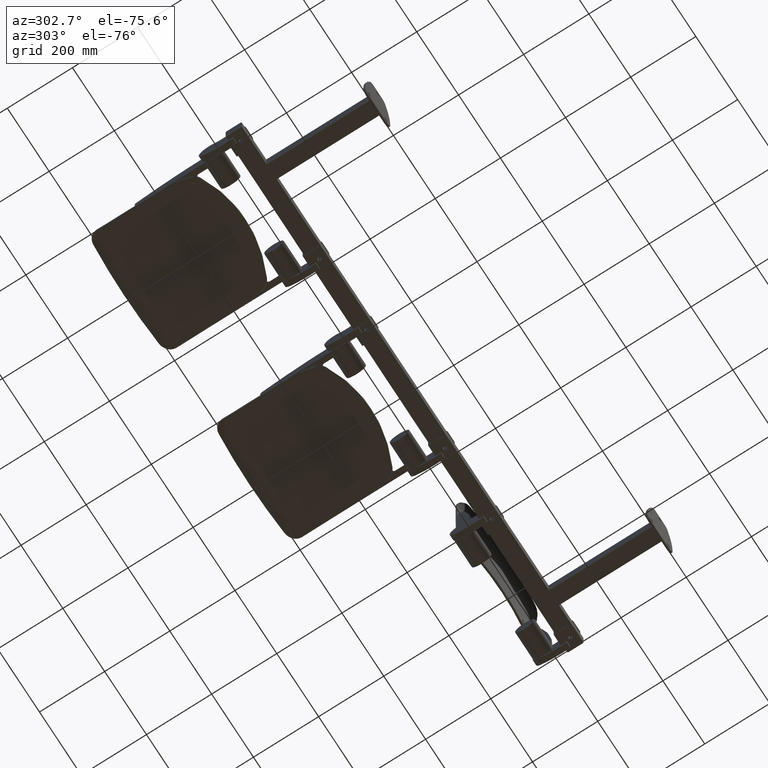
[diagram: clean part render]
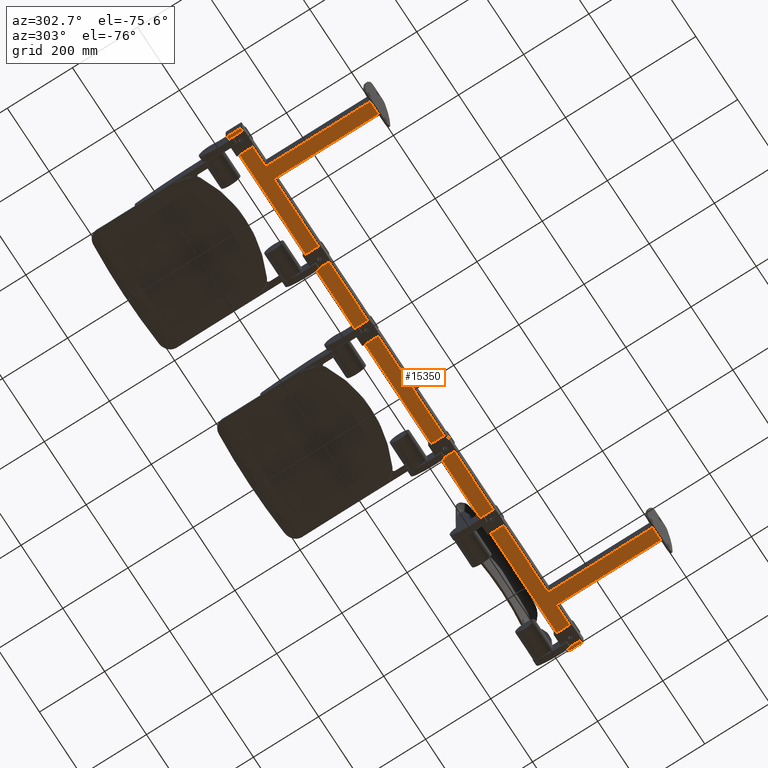
[diagram: same view with one face highlighted and labeled with its STEP entity id]
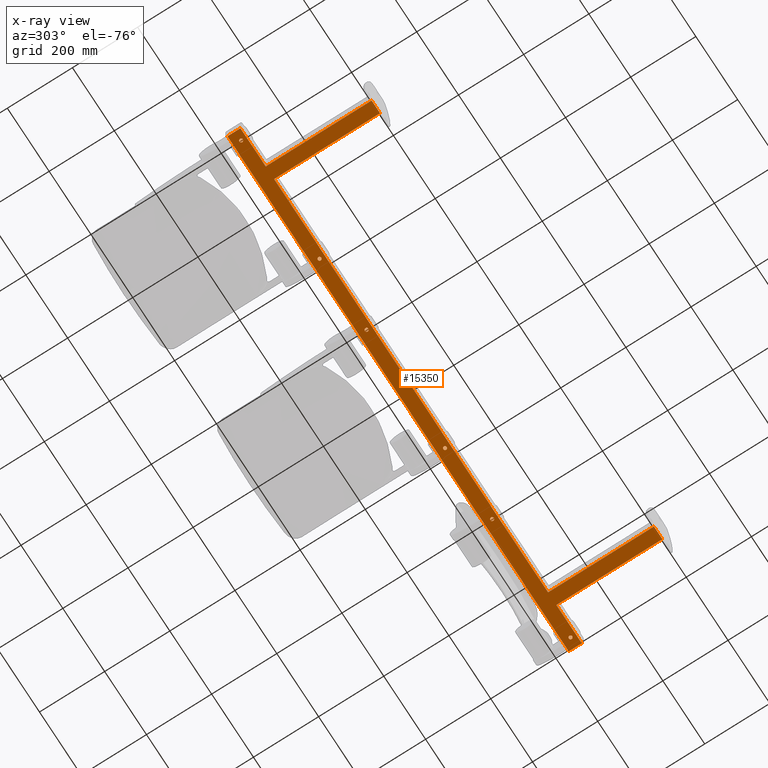
[diagram: x-ray of the same camera — body ghosted, the highlighted face saturated]
A machine part, auxiliary view. The second image highlights one B-rep face of the part: STEP entity #15350.
The next image is the same camera in x-ray: the body ghosted, the highlighted face saturated — about 0% of this face is hidden behind the body in this view.
In plain terms, the highlighted planar face has unit normal (0, 0, -1).
Its self-contained STEP definition (entity closure, byte-faithful):
#858 = AXIS2_PLACEMENT_3D ( 'NONE', #13570, #13568, #13574 ) ;
#945 = CARTESIAN_POINT ( 'NONE',  ( -187.5000000000000000, 347.0000000000000000, -25.00000000000000000 ) ) ;
#946 = DIRECTION ( 'NONE',  ( 0.0000000000000000000, 0.0000000000000000000, 1.000000000000000000 ) ) ;
#947 = DIRECTION ( 'NONE',  ( 1.000000000000000000, 0.0000000000000000000, 0.0000000000000000000 ) ) ;
#2024 = CARTESIAN_POINT ( 'NONE',  ( 695.0000000000001100, 6.000000000000000900, -25.00000000000000000 ) ) ;
#2028 = CARTESIAN_POINT ( 'NONE',  ( 695.0000000000002300, 331.0000000000000000, -25.00000000000000000 ) ) ;
#2032 = CARTESIAN_POINT ( 'NONE',  ( 816.0000000000000000, 331.0000000000000000, -25.00000000000000000 ) ) ;
#2046 = CARTESIAN_POINT ( 'NONE',  ( -816.0000000000000000, 331.0000000000000000, -25.00000000000000000 ) ) ;
#2048 = CARTESIAN_POINT ( 'NONE',  ( -654.9999999999998900, 331.0000000000000000, -25.00000000000000000 ) ) ;
#2050 = CARTESIAN_POINT ( 'NONE',  ( -695.0000000000002300, 331.0000000000000000, -25.00000000000000000 ) ) ;
#2056 = CARTESIAN_POINT ( 'NONE',  ( 816.0000000000000000, 371.0000000000000000, -25.00000000000000000 ) ) ;
#2058 = CARTESIAN_POINT ( 'NONE',  ( 654.9999999999998900, 331.0000000000000000, -25.00000000000000000 ) ) ;
#2869 = EDGE_LOOP ( 'NONE', ( #13723, #13724, #13721, #13722, #13713, #13714, #13717, #13718, #13715, #13716, #13707, #13708 ) ) ;
#2870 = EDGE_LOOP ( 'NONE', ( #13709, #13710 ) ) ;
#2871 = EDGE_LOOP ( 'NONE', ( #13711, #13712 ) ) ;
#2872 = EDGE_LOOP ( 'NONE', ( #13701, #13702 ) ) ;
#3342 = AXIS2_PLACEMENT_3D ( 'NONE', #16055, #16056, #16057 ) ;
#3347 = AXIS2_PLACEMENT_3D ( 'NONE', #16065, #16066, #16067 ) ;
#3351 = AXIS2_PLACEMENT_3D ( 'NONE', #16075, #16076, #16077 ) ;
#3356 = AXIS2_PLACEMENT_3D ( 'NONE', #16087, #16088, #16089 ) ;
#3400 = AXIS2_PLACEMENT_3D ( 'NONE', #9686, #9687, #9688 ) ;
#3403 = AXIS2_PLACEMENT_3D ( 'NONE', #9691, #9692, #9693 ) ;
#3405 = AXIS2_PLACEMENT_3D ( 'NONE', #9695, #9696, #9697 ) ;
#3407 = AXIS2_PLACEMENT_3D ( 'NONE', #9717, #9718, #9719 ) ;
#3410 = AXIS2_PLACEMENT_3D ( 'NONE', #9722, #9723, #9724 ) ;
#3412 = AXIS2_PLACEMENT_3D ( 'NONE', #9727, #9728, #9729 ) ;
#4136 = FACE_BOUND ( 'NONE', #16013, .T. ) ;
#4137 = FACE_BOUND ( 'NONE', #16015, .T. ) ;
#4138 = FACE_BOUND ( 'NONE', #2871, .T. ) ;
#4139 = FACE_OUTER_BOUND ( 'NONE', #2869, .T. ) ;
#4140 = FACE_BOUND ( 'NONE', #15381, .T. ) ;
#4141 = FACE_BOUND ( 'NONE', #2870, .T. ) ;
#4142 = FACE_BOUND ( 'NONE', #2872, .T. ) ;
#4345 = EDGE_CURVE ( 'NONE', #12924, #12923, #15771, .T. ) ;
#4386 = EDGE_CURVE ( 'NONE', #12965, #12922, #15389, .T. ) ;
#4473 = AXIS2_PLACEMENT_3D ( 'NONE', #945, #946, #947 ) ;
#4488 = AXIS2_PLACEMENT_3D ( 'NONE', #11894, #4581, #4582 ) ;
#4581 = DIRECTION ( 'NONE',  ( 0.0000000000000000000, 0.0000000000000000000, 1.000000000000000000 ) ) ;
#4582 = DIRECTION ( 'NONE',  ( 1.000000000000000000, 0.0000000000000000000, 0.0000000000000000000 ) ) ;
#4991 = CIRCLE ( 'NONE', #3342, 5.250000000000032000 ) ;
#4997 = CIRCLE ( 'NONE', #3347, 5.249999999999976900 ) ;
#5003 = CIRCLE ( 'NONE', #3351, 5.250000000000032000 ) ;
#5009 = CIRCLE ( 'NONE', #3356, 5.249999999999976900 ) ;
#5037 = LINE ( 'NONE', #9694, #5080 ) ;
#5042 = LINE ( 'NONE', #9635, #5044 ) ;
#5044 = VECTOR ( 'NONE', #9636, 1000.000000000000000 ) ;
#5073 = CIRCLE ( 'NONE', #3400, 5.250000000000004400 ) ;
#5074 = CIRCLE ( 'NONE', #3403, 5.249999999999976900 ) ;
#5075 = CIRCLE ( 'NONE', #3405, 5.249999999999976900 ) ;
#5076 = LINE ( 'NONE', #9689, #5078 ) ;
#5078 = VECTOR ( 'NONE', #9690, 1000.000000000000000 ) ;
#5079 = LINE ( 'NONE', #9699, #5082 ) ;
#5080 = VECTOR ( 'NONE', #9698, 1000.000000000000000 ) ;
#5081 = LINE ( 'NONE', #9701, #5084 ) ;
#5082 = VECTOR ( 'NONE', #9700, 1000.000000000000000 ) ;
#5083 = LINE ( 'NONE', #9703, #5086 ) ;
#5084 = VECTOR ( 'NONE', #9702, 1000.000000000000000 ) ;
#5085 = LINE ( 'NONE', #9705, #5088 ) ;
#5086 = VECTOR ( 'NONE', #9704, 1000.000000000000000 ) ;
#5087 = LINE ( 'NONE', #9707, #5090 ) ;
#5088 = VECTOR ( 'NONE', #9706, 1000.000000000000000 ) ;
#5089 = LINE ( 'NONE', #9709, #5092 ) ;
#5090 = VECTOR ( 'NONE', #9708, 1000.000000000000000 ) ;
#5091 = LINE ( 'NONE', #9711, #5094 ) ;
#5092 = VECTOR ( 'NONE', #9710, 1000.000000000000000 ) ;
#5093 = LINE ( 'NONE', #9713, #5096 ) ;
#5094 = VECTOR ( 'NONE', #9712, 1000.000000000000000 ) ;
#5095 = LINE ( 'NONE', #9715, #5098 ) ;
#5096 = VECTOR ( 'NONE', #9714, 1000.000000000000000 ) ;
#5097 = CIRCLE ( 'NONE', #3407, 5.250000000000032000 ) ;
#5098 = VECTOR ( 'NONE', #9716, 1000.000000000000000 ) ;
#5099 = CIRCLE ( 'NONE', #3410, 5.250000000000032000 ) ;
#5100 = CIRCLE ( 'NONE', #3412, 5.250000000000004400 ) ;
#5778 = CARTESIAN_POINT ( 'NONE',  ( -816.0000000000000000, 371.0000000000000000, -25.00000000000000000 ) ) ;
#5781 = CARTESIAN_POINT ( 'NONE',  ( 655.0000000000000000, 6.000000000000000900, -25.00000000000000000 ) ) ;
#5789 = CARTESIAN_POINT ( 'NONE',  ( -655.0000000000000000, 6.000000000000000000, -25.00000000000000000 ) ) ;
#5790 = CARTESIAN_POINT ( 'NONE',  ( -695.0000000000001100, 6.000000000000000900, -25.00000000000000000 ) ) ;
#5838 = CARTESIAN_POINT ( 'NONE',  ( -792.7500000000001100, 347.0000000000000000, -25.00000000000000000 ) ) ;
#5840 = CARTESIAN_POINT ( 'NONE',  ( -782.2500000000001100, 347.0000000000000000, -25.00000000000000000 ) ) ;
#5843 = CARTESIAN_POINT ( 'NONE',  ( 407.2500000000000000, 347.0000000000000000, -25.00000000000000000 ) ) ;
#5845 = CARTESIAN_POINT ( 'NONE',  ( -407.2500000000000000, 347.0000000000000000, -25.00000000000000000 ) ) ;
#5847 = CARTESIAN_POINT ( 'NONE',  ( -417.7500000000000600, 347.0000000000000000, -25.00000000000000000 ) ) ;
#5850 = CARTESIAN_POINT ( 'NONE',  ( 417.7500000000000600, 347.0000000000000000, -25.00000000000000000 ) ) ;
#5852 = CARTESIAN_POINT ( 'NONE',  ( 792.7500000000001100, 347.0000000000000000, -25.00000000000000000 ) ) ;
#5853 = CARTESIAN_POINT ( 'NONE',  ( 782.2500000000001100, 347.0000000000000000, -25.00000000000000000 ) ) ;
#5858 = CARTESIAN_POINT ( 'NONE',  ( 192.7500000000000000, 347.0000000000000000, -25.00000000000000000 ) ) ;
#5859 = CARTESIAN_POINT ( 'NONE',  ( -182.2500000000000000, 347.0000000000000000, -25.00000000000000000 ) ) ;
#5860 = CARTESIAN_POINT ( 'NONE',  ( -192.7500000000000000, 347.0000000000000000, -25.00000000000000000 ) ) ;
#5901 = CARTESIAN_POINT ( 'NONE',  ( 182.2500000000000000, 347.0000000000000000, -25.00000000000000000 ) ) ;
#9635 = CARTESIAN_POINT ( 'NONE',  ( -700.0000000000001100, 6.000000000000000900, -25.00000000000000000 ) ) ;
#9636 = DIRECTION ( 'NONE',  ( 1.000000000000000000, -1.734723475976805600E-017, 0.0000000000000000000 ) ) ;
#9686 = CARTESIAN_POINT ( 'NONE',  ( -187.5000000000000000, 347.0000000000000000, -25.00000000000000000 ) ) ;
#9687 = DIRECTION ( 'NONE',  ( 0.0000000000000000000, 0.0000000000000000000, 1.000000000000000000 ) ) ;
#9688 = DIRECTION ( 'NONE',  ( 1.000000000000000000, 0.0000000000000000000, 0.0000000000000000000 ) ) ;
#9689 = CARTESIAN_POINT ( 'NONE',  ( 818.0000000000000000, 371.0000000000000000, -25.00000000000000000 ) ) ;
#9690 = DIRECTION ( 'NONE',  ( 1.000000000000000000, -0.0000000000000000000, -0.0000000000000000000 ) ) ;
#9691 = CARTESIAN_POINT ( 'NONE',  ( 787.5000000000001100, 347.0000000000000000, -25.00000000000000000 ) ) ;
#9692 = DIRECTION ( 'NONE',  ( 0.0000000000000000000, 0.0000000000000000000, 1.000000000000000000 ) ) ;
#9693 = DIRECTION ( 'NONE',  ( -1.000000000000000000, 0.0000000000000000000, 0.0000000000000000000 ) ) ;
#9694 = CARTESIAN_POINT ( 'NONE',  ( 816.0000000000000000, 331.0000000000000000, -25.00000000000000000 ) ) ;
#9695 = CARTESIAN_POINT ( 'NONE',  ( -787.5000000000001100, 347.0000000000000000, -25.00000000000000000 ) ) ;
#9696 = DIRECTION ( 'NONE',  ( 0.0000000000000000000, 0.0000000000000000000, 1.000000000000000000 ) ) ;
#9697 = DIRECTION ( 'NONE',  ( 1.000000000000000000, 0.0000000000000000000, 0.0000000000000000000 ) ) ;
#9698 = DIRECTION ( 'NONE',  ( -0.0000000000000000000, -1.000000000000000000, -0.0000000000000000000 ) ) ;
#9699 = CARTESIAN_POINT ( 'NONE',  ( 700.0000000000002300, 331.0000000000000000, -25.00000000000000000 ) ) ;
#9700 = DIRECTION ( 'NONE',  ( -1.000000000000000000, -0.0000000000000000000, -0.0000000000000000000 ) ) ;
#9701 = CARTESIAN_POINT ( 'NONE',  ( 695.0000000000001100, 6.000000000000002700, -25.00000000000000000 ) ) ;
#9702 = DIRECTION ( 'NONE',  ( -3.469446951953614200E-016, -1.000000000000000000, -0.0000000000000000000 ) ) ;
#9703 = CARTESIAN_POINT ( 'NONE',  ( 650.0000000000000000, 6.000000000000000900, -25.00000000000000000 ) ) ;
#9704 = DIRECTION ( 'NONE',  ( 1.000000000000000000, 0.0000000000000000000, 0.0000000000000000000 ) ) ;
#9705 = CARTESIAN_POINT ( 'NONE',  ( 654.9999999999998900, 326.0000000000000000, -25.00000000000000000 ) ) ;
#9706 = DIRECTION ( 'NONE',  ( -3.469446951953614200E-016, 1.000000000000000000, -0.0000000000000000000 ) ) ;
#9707 = CARTESIAN_POINT ( 'NONE',  ( -649.9999999999998900, 331.0000000000000000, -25.00000000000000000 ) ) ;
#9708 = DIRECTION ( 'NONE',  ( -1.000000000000000000, -0.0000000000000000000, -0.0000000000000000000 ) ) ;
#9709 = CARTESIAN_POINT ( 'NONE',  ( -655.0000000000000000, 6.000000000000001800, -25.00000000000000000 ) ) ;
#9710 = DIRECTION ( 'NONE',  ( -3.469446951953614200E-016, -1.000000000000000000, -0.0000000000000000000 ) ) ;
#9711 = CARTESIAN_POINT ( 'NONE',  ( -695.0000000000002300, 326.0000000000000000, -25.00000000000000000 ) ) ;
#9712 = DIRECTION ( 'NONE',  ( -3.469446951953614200E-016, 1.000000000000000000, -0.0000000000000000000 ) ) ;
#9713 = CARTESIAN_POINT ( 'NONE',  ( -818.0000000000000000, 331.0000000000000000, -25.00000000000000000 ) ) ;
#9714 = DIRECTION ( 'NONE',  ( -1.000000000000000000, -0.0000000000000000000, -0.0000000000000000000 ) ) ;
#9715 = CARTESIAN_POINT ( 'NONE',  ( -816.0000000000000000, 371.0000000000000000, -25.00000000000000000 ) ) ;
#9716 = DIRECTION ( 'NONE',  ( -0.0000000000000000000, 1.000000000000000000, -0.0000000000000000000 ) ) ;
#9717 = CARTESIAN_POINT ( 'NONE',  ( -412.5000000000000600, 347.0000000000000000, -25.00000000000000000 ) ) ;
#9718 = DIRECTION ( 'NONE',  ( 0.0000000000000000000, 0.0000000000000000000, 1.000000000000000000 ) ) ;
#9719 = DIRECTION ( 'NONE',  ( 1.000000000000000000, 0.0000000000000000000, 0.0000000000000000000 ) ) ;
#9722 = CARTESIAN_POINT ( 'NONE',  ( 412.5000000000000600, 347.0000000000000000, -25.00000000000000000 ) ) ;
#9723 = DIRECTION ( 'NONE',  ( 0.0000000000000000000, 0.0000000000000000000, 1.000000000000000000 ) ) ;
#9724 = DIRECTION ( 'NONE',  ( -1.000000000000000000, 0.0000000000000000000, 0.0000000000000000000 ) ) ;
#9727 = CARTESIAN_POINT ( 'NONE',  ( 187.5000000000000000, 347.0000000000000000, -25.00000000000000000 ) ) ;
#9728 = DIRECTION ( 'NONE',  ( 0.0000000000000000000, 0.0000000000000000000, 1.000000000000000000 ) ) ;
#9729 = DIRECTION ( 'NONE',  ( 1.000000000000000000, 0.0000000000000000000, 0.0000000000000000000 ) ) ;
#11309 = EDGE_CURVE ( 'NONE', #12907, #12914, #4991, .T. ) ;
#11313 = EDGE_CURVE ( 'NONE', #12917, #12916, #4997, .T. ) ;
#11317 = EDGE_CURVE ( 'NONE', #12911, #12909, #5003, .T. ) ;
#11321 = EDGE_CURVE ( 'NONE', #12902, #12904, #5009, .T. ) ;
#11343 = EDGE_CURVE ( 'NONE', #12854, #12853, #5042, .T. ) ;
#11362 = EDGE_CURVE ( 'NONE', #12923, #12924, #5073, .T. ) ;
#11363 = EDGE_CURVE ( 'NONE', #12916, #12917, #5074, .T. ) ;
#11364 = EDGE_CURVE ( 'NONE', #12904, #12902, #5075, .T. ) ;
#11365 = EDGE_CURVE ( 'NONE', #12842, #12988, #5076, .T. ) ;
#11366 = EDGE_CURVE ( 'NONE', #12988, #12976, #5037, .T. ) ;
#11367 = EDGE_CURVE ( 'NONE', #12976, #12974, #5079, .T. ) ;
#11368 = EDGE_CURVE ( 'NONE', #12974, #12972, #5081, .T. ) ;
#11369 = EDGE_CURVE ( 'NONE', #12845, #12972, #5083, .T. ) ;
#11370 = EDGE_CURVE ( 'NONE', #12845, #12990, #5085, .T. ) ;
#11371 = EDGE_CURVE ( 'NONE', #12990, #12984, #5087, .T. ) ;
#11372 = EDGE_CURVE ( 'NONE', #12984, #12853, #5089, .T. ) ;
#11373 = EDGE_CURVE ( 'NONE', #12854, #12985, #5091, .T. ) ;
#11374 = EDGE_CURVE ( 'NONE', #12985, #12983, #5093, .T. ) ;
#11375 = EDGE_CURVE ( 'NONE', #12983, #12842, #5095, .T. ) ;
#11376 = EDGE_CURVE ( 'NONE', #12909, #12911, #5097, .T. ) ;
#11377 = EDGE_CURVE ( 'NONE', #12914, #12907, #5099, .T. ) ;
#11378 = EDGE_CURVE ( 'NONE', #12922, #12965, #5100, .T. ) ;
#11894 = CARTESIAN_POINT ( 'NONE',  ( 187.5000000000000000, 347.0000000000000000, -25.00000000000000000 ) ) ;
#12842 = VERTEX_POINT ( 'NONE', #5778 ) ;
#12845 = VERTEX_POINT ( 'NONE', #5781 ) ;
#12853 = VERTEX_POINT ( 'NONE', #5789 ) ;
#12854 = VERTEX_POINT ( 'NONE', #5790 ) ;
#12902 = VERTEX_POINT ( 'NONE', #5838 ) ;
#12904 = VERTEX_POINT ( 'NONE', #5840 ) ;
#12907 = VERTEX_POINT ( 'NONE', #5843 ) ;
#12909 = VERTEX_POINT ( 'NONE', #5845 ) ;
#12911 = VERTEX_POINT ( 'NONE', #5847 ) ;
#12914 = VERTEX_POINT ( 'NONE', #5850 ) ;
#12916 = VERTEX_POINT ( 'NONE', #5852 ) ;
#12917 = VERTEX_POINT ( 'NONE', #5853 ) ;
#12922 = VERTEX_POINT ( 'NONE', #5858 ) ;
#12923 = VERTEX_POINT ( 'NONE', #5859 ) ;
#12924 = VERTEX_POINT ( 'NONE', #5860 ) ;
#12965 = VERTEX_POINT ( 'NONE', #5901 ) ;
#12972 = VERTEX_POINT ( 'NONE', #2024 ) ;
#12974 = VERTEX_POINT ( 'NONE', #2028 ) ;
#12976 = VERTEX_POINT ( 'NONE', #2032 ) ;
#12983 = VERTEX_POINT ( 'NONE', #2046 ) ;
#12984 = VERTEX_POINT ( 'NONE', #2048 ) ;
#12985 = VERTEX_POINT ( 'NONE', #2050 ) ;
#12988 = VERTEX_POINT ( 'NONE', #2056 ) ;
#12990 = VERTEX_POINT ( 'NONE', #2058 ) ;
#13568 = DIRECTION ( 'NONE',  ( 0.0000000000000000000, 0.0000000000000000000, -1.000000000000000000 ) ) ;
#13570 = CARTESIAN_POINT ( 'NONE',  ( 0.0000000000000000000, 0.0000000000000000000, -25.00000000000000000 ) ) ;
#13572 = PLANE ( 'NONE',  #858 ) ;
#13574 = DIRECTION ( 'NONE',  ( -1.000000000000000000, 0.0000000000000000000, -0.0000000000000000000 ) ) ;
#13701 = ORIENTED_EDGE ( 'NONE', *, *, #4386, .T. ) ;
#13702 = ORIENTED_EDGE ( 'NONE', *, *, #11378, .T. ) ;
#13707 = ORIENTED_EDGE ( 'NONE', *, *, #11374, .T. ) ;
#13708 = ORIENTED_EDGE ( 'NONE', *, *, #11375, .T. ) ;
#13709 = ORIENTED_EDGE ( 'NONE', *, *, #11309, .T. ) ;
#13710 = ORIENTED_EDGE ( 'NONE', *, *, #11377, .T. ) ;
#13711 = ORIENTED_EDGE ( 'NONE', *, *, #11317, .T. ) ;
#13712 = ORIENTED_EDGE ( 'NONE', *, *, #11376, .T. ) ;
#13713 = ORIENTED_EDGE ( 'NONE', *, *, #11369, .F. ) ;
#13714 = ORIENTED_EDGE ( 'NONE', *, *, #11370, .T. ) ;
#13715 = ORIENTED_EDGE ( 'NONE', *, *, #11343, .F. ) ;
#13716 = ORIENTED_EDGE ( 'NONE', *, *, #11373, .T. ) ;
#13717 = ORIENTED_EDGE ( 'NONE', *, *, #11371, .T. ) ;
#13718 = ORIENTED_EDGE ( 'NONE', *, *, #11372, .T. ) ;
#13719 = ORIENTED_EDGE ( 'NONE', *, *, #11321, .T. ) ;
#13720 = ORIENTED_EDGE ( 'NONE', *, *, #11364, .T. ) ;
#13721 = ORIENTED_EDGE ( 'NONE', *, *, #11367, .T. ) ;
#13722 = ORIENTED_EDGE ( 'NONE', *, *, #11368, .T. ) ;
#13723 = ORIENTED_EDGE ( 'NONE', *, *, #11365, .T. ) ;
#13724 = ORIENTED_EDGE ( 'NONE', *, *, #11366, .T. ) ;
#13727 = ORIENTED_EDGE ( 'NONE', *, *, #11313, .T. ) ;
#13728 = ORIENTED_EDGE ( 'NONE', *, *, #11363, .T. ) ;
#13729 = ORIENTED_EDGE ( 'NONE', *, *, #4345, .T. ) ;
#13730 = ORIENTED_EDGE ( 'NONE', *, *, #11362, .T. ) ;
#15350 = ADVANCED_FACE ( 'NONE', ( #4136, #4140, #4137, #4139, #4138, #4141, #4142 ), #13572, .T. ) ;
#15381 = EDGE_LOOP ( 'NONE', ( #13727, #13728 ) ) ;
#15389 = CIRCLE ( 'NONE', #4488, 5.250000000000004400 ) ;
#15771 = CIRCLE ( 'NONE', #4473, 5.250000000000004400 ) ;
#16013 = EDGE_LOOP ( 'NONE', ( #13729, #13730 ) ) ;
#16015 = EDGE_LOOP ( 'NONE', ( #13719, #13720 ) ) ;
#16055 = CARTESIAN_POINT ( 'NONE',  ( 412.5000000000000600, 347.0000000000000000, -25.00000000000000000 ) ) ;
#16056 = DIRECTION ( 'NONE',  ( 0.0000000000000000000, 0.0000000000000000000, 1.000000000000000000 ) ) ;
#16057 = DIRECTION ( 'NONE',  ( -1.000000000000000000, 0.0000000000000000000, 0.0000000000000000000 ) ) ;
#16065 = CARTESIAN_POINT ( 'NONE',  ( 787.5000000000001100, 347.0000000000000000, -25.00000000000000000 ) ) ;
#16066 = DIRECTION ( 'NONE',  ( 0.0000000000000000000, 0.0000000000000000000, 1.000000000000000000 ) ) ;
#16067 = DIRECTION ( 'NONE',  ( -1.000000000000000000, 0.0000000000000000000, 0.0000000000000000000 ) ) ;
#16075 = CARTESIAN_POINT ( 'NONE',  ( -412.5000000000000600, 347.0000000000000000, -25.00000000000000000 ) ) ;
#16076 = DIRECTION ( 'NONE',  ( 0.0000000000000000000, 0.0000000000000000000, 1.000000000000000000 ) ) ;
#16077 = DIRECTION ( 'NONE',  ( 1.000000000000000000, 0.0000000000000000000, 0.0000000000000000000 ) ) ;
#16087 = CARTESIAN_POINT ( 'NONE',  ( -787.5000000000001100, 347.0000000000000000, -25.00000000000000000 ) ) ;
#16088 = DIRECTION ( 'NONE',  ( 0.0000000000000000000, 0.0000000000000000000, 1.000000000000000000 ) ) ;
#16089 = DIRECTION ( 'NONE',  ( 1.000000000000000000, 0.0000000000000000000, 0.0000000000000000000 ) ) ;